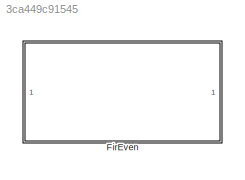
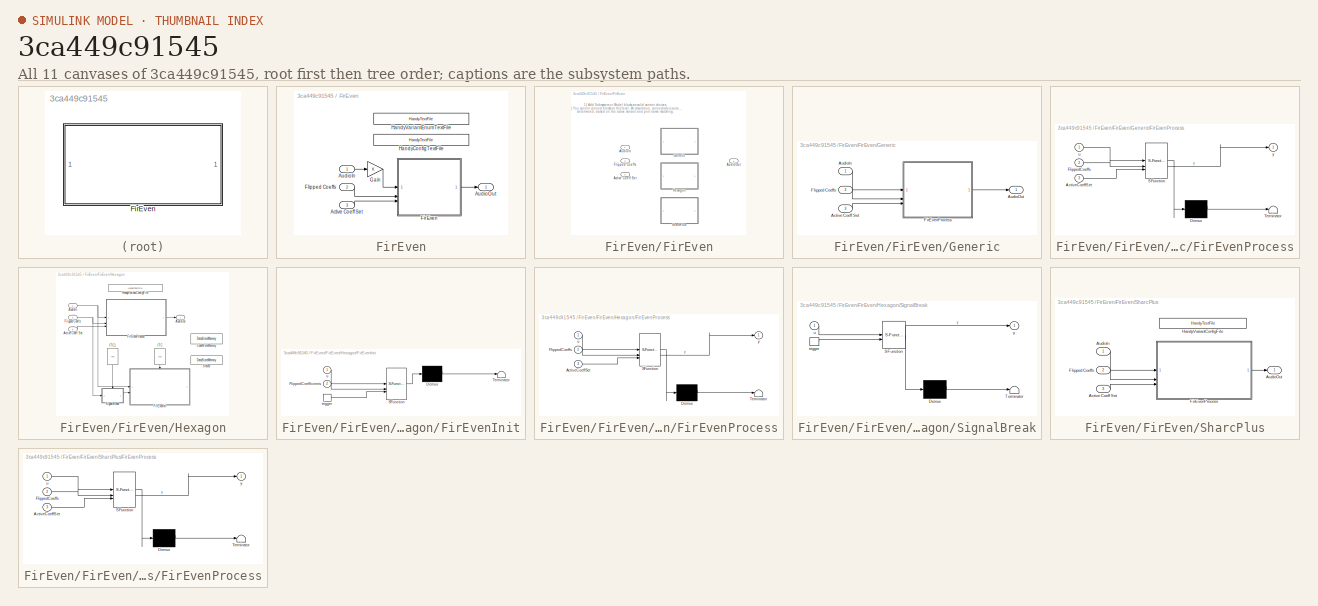
[diagram: thumbnail index - all 11 canvases of the model, root first then tree order]
MODEL slx_3ca449c91545
KIND library
CONFIG AbsTol = auto
CONFIG EnableMultiTasking = off
CONFIG FixedStep = auto
CONFIG MaxStep = auto
CONFIG MinStep = auto
CONFIG RelTol = 1e-3
CONFIG SampleTimeConstraint = Unconstrained
CONFIG SolverName = VariableStepAuto
CONFIG StartTime = 0.0
CONFIG StopTime = 10.0
BLOCK [SubSystem] FirEven
BLOCK [Inport] FirEven/Active Coeff Set
  Port = 3
BLOCK [Inport] FirEven/AudioIn
BLOCK [Outport] FirEven/AudioOut
BLOCK [SubSystem] FirEven/FirEven
  Variant = on
BLOCK [Inport] FirEven/FirEven/Active Coeff Set
  Port = 3
BLOCK [Inport] FirEven/FirEven/AudioIn
BLOCK [Outport] FirEven/FirEven/AudioOut
BLOCK [Inport] FirEven/FirEven/Flipped Coeffs
  Port = 2
BLOCK [SubSystem] FirEven/FirEven/Generic
  VariantControl = (default)
BLOCK [Inport] FirEven/FirEven/Generic/Active Coeff Set
  Port = 3
BLOCK [Inport] FirEven/FirEven/Generic/AudioIn
BLOCK [Outport] FirEven/FirEven/Generic/AudioOut
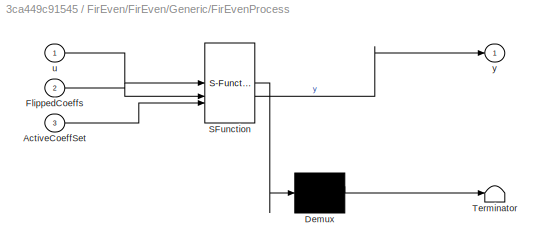
BLOCK [SubSystem] FirEven/FirEven/Generic/FirEvenProcess
  ErrorFcn = Stateflow.Translate.translate
  LibrarySourceBlock = simulink/User-Defined\nFunctions/MATLAB Function
  PermitHierarchicalResolution = ExplicitOnly
  SFBlockType = MATLAB Function
  TreatAsAtomicUnit = on
BLOCK [Demux] FirEven/FirEven/Generic/FirEvenProcess/ Demux 
  Outputs = 1
BLOCK [S-Function] FirEven/FirEven/Generic/FirEvenProcess/ SFunction 
  EnableBusSupport = off
  FunctionName = sf_sfun
  PortCounts = [3 2]
  SFcnIsStateOwnerBlock = off
  SFunctionDeploymentMode = off
  Tag = Stateflow S-Function 2
BLOCK [Terminator] FirEven/FirEven/Generic/FirEvenProcess/ Terminator 
BLOCK [Inport] FirEven/FirEven/Generic/FirEvenProcess/ActiveCoeffSet
  Port = 3
BLOCK [Inport] FirEven/FirEven/Generic/FirEvenProcess/FlippedCoeffs
  Port = 2
BLOCK [Inport] FirEven/FirEven/Generic/FirEvenProcess/u
BLOCK [Outport] FirEven/FirEven/Generic/FirEvenProcess/y
BLOCK [Inport] FirEven/FirEven/Generic/Flipped Coeffs
  Port = 2
BLOCK [SubSystem] FirEven/FirEven/Hexagon
  VariantControl = Config.Variant.StartsWith('Hexagon')
BLOCK [Inport] FirEven/FirEven/Hexagon/Active Coeff Set
  Port = 3
BLOCK [Inport] FirEven/FirEven/Hexagon/AudioIn
BLOCK [Outport] FirEven/FirEven/Hexagon/AudioOut
BLOCK [DataStoreMemory] FirEven/FirEven/Hexagon/CodeWorkMemory
  DataStoreName = CodeWorkMemory
  InitialValue = uint32(zeros(1,16+4*Config.VariantObj.MaxNumOfThreads+14*Config.VariantObj.MaxNumOfThreads))
  OutDataTypeStr = uint32
  ShowAdditionalParam = off
  SignalType = real
  WriteAfterWriteMsg = warning
BLOCK [SubSystem] FirEven/FirEven/Hexagon/FirEvenInit
  ErrorFcn = Stateflow.Translate.translate
  LibrarySourceBlock = simulink/User-Defined\nFunctions/MATLAB Function
  PermitHierarchicalResolution = ExplicitOnly
  SFBlockType = MATLAB Function
  TreatAsAtomicUnit = on
BLOCK [Demux] FirEven/FirEven/Hexagon/FirEvenInit/ Demux 
  Outputs = 1
BLOCK [S-Function] FirEven/FirEven/Hexagon/FirEvenInit/ SFunction 
  EnableBusSupport = off
  FunctionName = sf_sfun
  Parameters = MaxNumOfThreds
  PortCounts = [3 1]
  SFcnIsStateOwnerBlock = off
  SFunctionDeploymentMode = off
  Tag = Stateflow S-Function 3
BLOCK [Terminator] FirEven/FirEven/Hexagon/FirEvenInit/ Terminator 
BLOCK [Inport] FirEven/FirEven/Hexagon/FirEvenInit/FlippedCoefficients
  Port = 2
BLOCK [TriggerPort] FirEven/FirEven/Hexagon/FirEvenInit/trigger
  ShowOutputPort = on
  StatesWhenEnabling = held
  TriggerType = function-call
  VariantControl = (inherit)
BLOCK [Inport] FirEven/FirEven/Hexagon/FirEvenInit/u
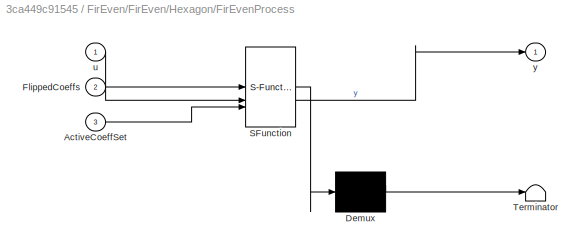
BLOCK [SubSystem] FirEven/FirEven/Hexagon/FirEvenProcess
  ErrorFcn = Stateflow.Translate.translate
  LibrarySourceBlock = simulink/User-Defined\nFunctions/MATLAB Function
  PermitHierarchicalResolution = ExplicitOnly
  SFBlockType = MATLAB Function
  TreatAsAtomicUnit = on
BLOCK [Demux] FirEven/FirEven/Hexagon/FirEvenProcess/ Demux 
  Outputs = 1
BLOCK [S-Function] FirEven/FirEven/Hexagon/FirEvenProcess/ SFunction 
  EnableBusSupport = off
  FunctionName = sf_sfun
  PortCounts = [3 2]
  SFcnIsStateOwnerBlock = off
  SFunctionDeploymentMode = off
  Tag = Stateflow S-Function 4
BLOCK [Terminator] FirEven/FirEven/Hexagon/FirEvenProcess/ Terminator 
BLOCK [Inport] FirEven/FirEven/Hexagon/FirEvenProcess/ActiveCoeffSet
  Port = 3
BLOCK [Inport] FirEven/FirEven/Hexagon/FirEvenProcess/FlippedCoeffs
  Port = 2
BLOCK [Inport] FirEven/FirEven/Hexagon/FirEvenProcess/u
BLOCK [Outport] FirEven/FirEven/Hexagon/FirEvenProcess/y
BLOCK [Inport] FirEven/FirEven/Hexagon/Flipped Coeffs
  Port = 2
BLOCK [Reference] FirEven/FirEven/Hexagon/HandyVariantConfigFile  REF=HandyTextFile/HandyTextFile
  SourceBlock = HandyTextFile/HandyTextFile
  SourceProductName = Bose Talaria
  SourceType = Talaria Handy Text File
BLOCK [Reference] FirEven/FirEven/Hexagon/ITC  REF=ITC/ITC
  NameLocation = right
  SourceBlock = ITC/ITC
  SourceProductName = Bose Talaria
  SourceType = Talaria Initialization Trigger Control
BLOCK [Reference] FirEven/FirEven/Hexagon/ITC1  REF=ITC/ITC
  NameLocation = right
  SourceBlock = ITC/ITC
  SourceProductName = Bose Talaria
  SourceType = Talaria Initialization Trigger Control
BLOCK [SubSystem] FirEven/FirEven/Hexagon/SignalBreak
  ErrorFcn = Stateflow.Translate.translate
  LibrarySourceBlock = simulink/User-Defined\nFunctions/MATLAB Function
  PermitHierarchicalResolution = ExplicitOnly
  SFBlockType = MATLAB Function
  TreatAsAtomicUnit = on
BLOCK [Demux] FirEven/FirEven/Hexagon/SignalBreak/ Demux 
  Outputs = 1
BLOCK [S-Function] FirEven/FirEven/Hexagon/SignalBreak/ SFunction 
  EnableBusSupport = off
  FunctionName = sf_sfun
  PortCounts = [2 2]
  SFcnIsStateOwnerBlock = off
  SFunctionDeploymentMode = off
  Tag = Stateflow S-Function 1
BLOCK [Terminator] FirEven/FirEven/Hexagon/SignalBreak/ Terminator 
BLOCK [TriggerPort] FirEven/FirEven/Hexagon/SignalBreak/trigger
  ShowOutputPort = on
  StatesWhenEnabling = held
  TriggerType = function-call
  VariantControl = (inherit)
BLOCK [Inport] FirEven/FirEven/Hexagon/SignalBreak/u
BLOCK [Outport] FirEven/FirEven/Hexagon/SignalBreak/y
BLOCK [DataStoreMemory] FirEven/FirEven/Hexagon/States
  DataStoreName = States
  InitialValue = single(zeros(Config.VariantObj.StateBufferSize,1))
  OutDataTypeStr = single
  ShowAdditionalParam = off
  SignalType = real
  WriteAfterWriteMsg = warning
BLOCK [SubSystem] FirEven/FirEven/SharcPlus
  VariantControl = Config.Variant.StartsWith('SharcPlus')
BLOCK [Inport] FirEven/FirEven/SharcPlus/Active Coeff Set
  Port = 3
BLOCK [Inport] FirEven/FirEven/SharcPlus/AudioIn
BLOCK [Outport] FirEven/FirEven/SharcPlus/AudioOut
BLOCK [SubSystem] FirEven/FirEven/SharcPlus/FirEvenProcess
  ErrorFcn = Stateflow.Translate.translate
  LibrarySourceBlock = simulink/User-Defined\nFunctions/MATLAB Function
  PermitHierarchicalResolution = ExplicitOnly
  SFBlockType = MATLAB Function
  TreatAsAtomicUnit = on
BLOCK [Demux] FirEven/FirEven/SharcPlus/FirEvenProcess/ Demux 
  Outputs = 1
BLOCK [S-Function] FirEven/FirEven/SharcPlus/FirEvenProcess/ SFunction 
  EnableBusSupport = off
  FunctionName = sf_sfun
  PortCounts = [3 2]
  SFcnIsStateOwnerBlock = off
  SFunctionDeploymentMode = off
  Tag = Stateflow S-Function 6
BLOCK [Terminator] FirEven/FirEven/SharcPlus/FirEvenProcess/ Terminator 
BLOCK [Inport] FirEven/FirEven/SharcPlus/FirEvenProcess/ActiveCoeffSet
  Port = 3
BLOCK [Inport] FirEven/FirEven/SharcPlus/FirEvenProcess/FlippedCoeffs
  Port = 2
BLOCK [Inport] FirEven/FirEven/SharcPlus/FirEvenProcess/u
BLOCK [Outport] FirEven/FirEven/SharcPlus/FirEvenProcess/y
BLOCK [Inport] FirEven/FirEven/SharcPlus/Flipped Coeffs
  Port = 2
BLOCK [Reference] FirEven/FirEven/SharcPlus/HandyVariantConfigFile  REF=HandyTextFile/HandyTextFile
  SourceBlock = HandyTextFile/HandyTextFile
  SourceProductName = Bose Talaria
  SourceType = Talaria Handy Text File
BLOCK [Inport] FirEven/Flipped Coeffs
  Port = 2
BLOCK [Gain] FirEven/Gain
BLOCK [Reference] FirEven/HandyConfigTextFile  REF=HandyTextFile/HandyTextFile
  SourceBlock = HandyTextFile/HandyTextFile
  SourceProductName = Bose Talaria
  SourceType = Talaria Handy Text File
BLOCK [Reference] FirEven/HandyVariantEnumTextFile  REF=HandyTextFile/HandyTextFile
  SourceBlock = HandyTextFile/HandyTextFile
  SourceProductName = Bose Talaria
  SourceType = Talaria Handy Text File
ANNOTATION FirEven/FirEven: 1) Add Subsystem or Model blocks as valid variant choices. 2) You cannot connect blocks at this level. At simulation, connectivity is automatically determined, based on the active variant and port name matching.
LINE FirEven/Active Coeff Set:1 -> FirEven/FirEven:3
LINE FirEven/AudioIn:1 -> FirEven/Gain:1
LINE FirEven/FirEven/Generic/Active Coeff Set:1 -> FirEven/FirEven/Generic/FirEvenProcess:3
LINE FirEven/FirEven/Generic/AudioIn:1 -> FirEven/FirEven/Generic/FirEvenProcess:1
LINE FirEven/FirEven/Generic/FirEvenProcess:1 -> FirEven/FirEven/Generic/AudioOut:1
LINE FirEven/FirEven/Generic/Flipped Coeffs:1 -> FirEven/FirEven/Generic/FirEvenProcess:2
LINE FirEven/FirEven/Hexagon/Active Coeff Set:1 -> FirEven/FirEven/Hexagon/FirEvenProcess:3
NET FirEven/FirEven/Hexagon/AudioIn:1 -> FirEven/FirEven/Hexagon/FirEvenInit:1, FirEven/FirEven/Hexagon/FirEvenProcess:1
LINE FirEven/FirEven/Hexagon/FirEvenProcess:1 -> FirEven/FirEven/Hexagon/AudioOut:1
NET FirEven/FirEven/Hexagon/Flipped Coeffs:1 -> FirEven/FirEven/Hexagon/FirEvenProcess:2, FirEven/FirEven/Hexagon/SignalBreak:1
LINE FirEven/FirEven/Hexagon/ITC1:1 -> FirEven/FirEven/Hexagon/SignalBreak:trigger
LINE FirEven/FirEven/Hexagon/ITC:1 -> FirEven/FirEven/Hexagon/FirEvenInit:trigger
LINE FirEven/FirEven/Hexagon/SignalBreak:1 -> FirEven/FirEven/Hexagon/FirEvenInit:2
LINE FirEven/FirEven/SharcPlus/Active Coeff Set:1 -> FirEven/FirEven/SharcPlus/FirEvenProcess:3
LINE FirEven/FirEven/SharcPlus/AudioIn:1 -> FirEven/FirEven/SharcPlus/FirEvenProcess:1
LINE FirEven/FirEven/SharcPlus/FirEvenProcess:1 -> FirEven/FirEven/SharcPlus/AudioOut:1
LINE FirEven/FirEven/SharcPlus/Flipped Coeffs:1 -> FirEven/FirEven/SharcPlus/FirEvenProcess:2
LINE FirEven/FirEven:1 -> FirEven/AudioOut:1
LINE FirEven/Flipped Coeffs:1 -> FirEven/FirEven:2
LINE FirEven/Gain:1 -> FirEven/FirEven:1
note: NET lines group one-source signal fan-out (src -> all destinations, sorted); 1:1 wires keep LINE
CHART FirEven/FirEven/Hexagon/SignalBreak states=1 transitions=1
  STATE_LABEL 'eML_blk_kernel()'
  STATE_LABEL 'SCRIPT:\nfunction y = fcn(u)\n\ny = u;\n'
CHART FirEven/FirEven/Generic/FirEvenProcess states=1 transitions=1
  STATE_LABEL 'eML_blk_kernel()'
  STATE_LABEL 'SCRIPT:\nfunction y = FirEvenProcess(u, FlippedCoeffs, ActiveCoeffSet)\n\n[~, NumChannels] = size(u);\n\ny = FirEvenProcessSim(u, NumChannels, ActiveCoeffSet, FlippedCoeffs);\n\nend\n\n\n\n% % Extract configuration information from inputs\n% [taps, ~] = size(flipped_coeffs);\n% [frame_size, num_channels] = size(u);\n% \n% % Initialize state variables to zero\n% persistent states;\n% if isempty(states)\n%     states...<+1422ch>'
CHART FirEven/FirEven/Hexagon/FirEvenInit states=1 transitions=1
  STATE_LABEL 'eML_blk_kernel()'
  STATE_LABEL "SCRIPT:\nfunction FirEvenInit(u, FlippedCoefficients, MaxNumOfThreds)\n\n% Extract configuration information from inputs\n[FilterLength, NumFilters] = size(FlippedCoefficients);\n[FrameSize, NumChannels] = size(u);\n\nglobal CodeWorkMemory;\n\n% Simulation \nif(coder.target('MATLAB') || coder.target('Sfun')) \n    return; % No init for simulation code\nelse\n    y = fireven_hexagon_init(uint32(FrameSize), uint...<+682ch>"
CHART FirEven/FirEven/Hexagon/FirEvenProcess states=1 transitions=1
  STATE_LABEL 'eML_blk_kernel()'
  STATE_LABEL 'SCRIPT:\nfunction y = FirEvenProcess(u, FlippedCoeffs, ActiveCoeffSet)\n\n% Extract configuration information from inputs\n[FilterLength, ~] = size(FlippedCoeffs);\n[FrameSize, NumChannels] = size(u);\n\nglobal CodeWorkMemory;\nglobal States;\n\n% Initialize variables\n% persistent States;\n% if isempty(States)\n%     States = single(zeros(FilterLength + FrameSize*2 + 2, NumChannels));\n% end\n\n% Set correct dat...<+954ch>'
CHART FirEven/FirEven/SharcPlus/FirEvenProcess states=1 transitions=1
  STATE_LABEL 'eML_blk_kernel()'
  STATE_LABEL 'SCRIPT:\nfunction y = FirEvenProcess(u, FlippedCoeffs, ActiveCoeffSet)\n\n% Extract configuration information from inputs\n[FilterLength, ~] = size(FlippedCoeffs);\n[FrameSize, NumChannels] = size(u);\n\n% Initialize variables\npersistent States;\nif isempty(States)\n    States = single(zeros(FilterLength + FrameSize + 2, NumChannels));\nend\n\n% Initialize state index to zero\npersistent StateIndex;\nif isempty...<+649ch>'
CHART  states=0 transitions=0
CHART  states=0 transitions=0
CHART  states=0 transitions=0
CHART  states=0 transitions=0
CHART  states=0 transitions=0
